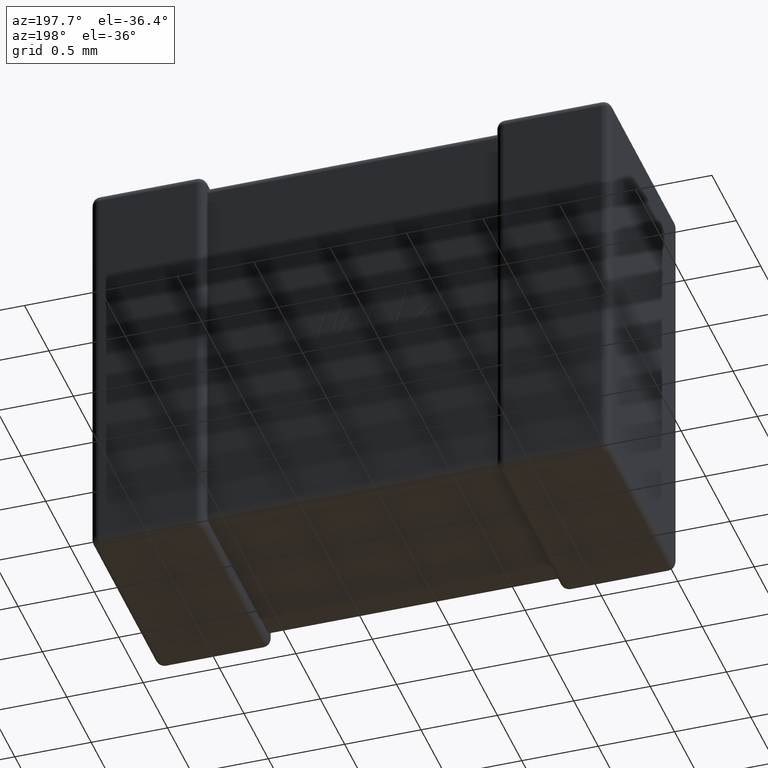
[diagram: clean part render]
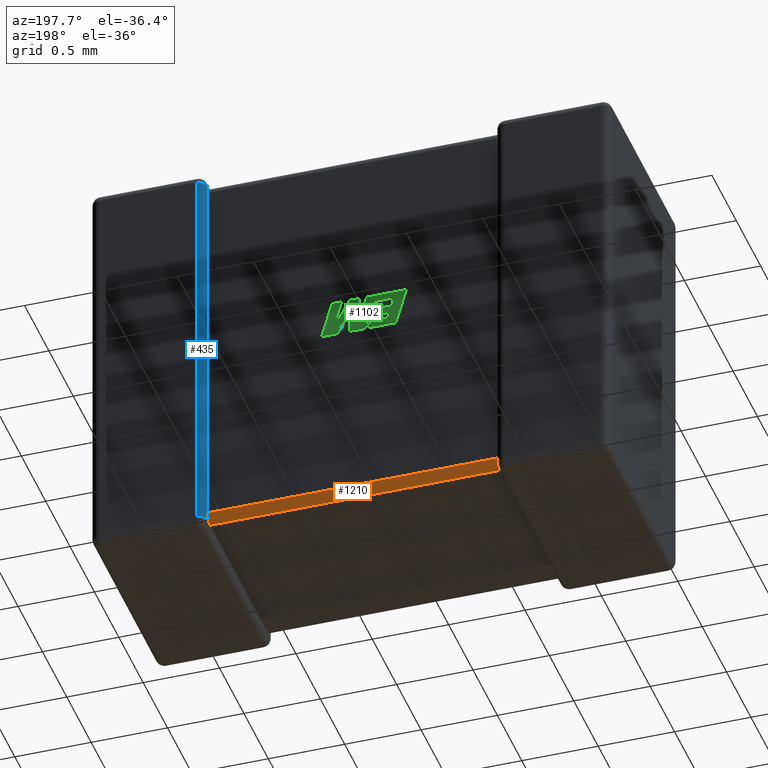
[diagram: same view with three faces highlighted in distinct colors, each labeled with its STEP entity id]
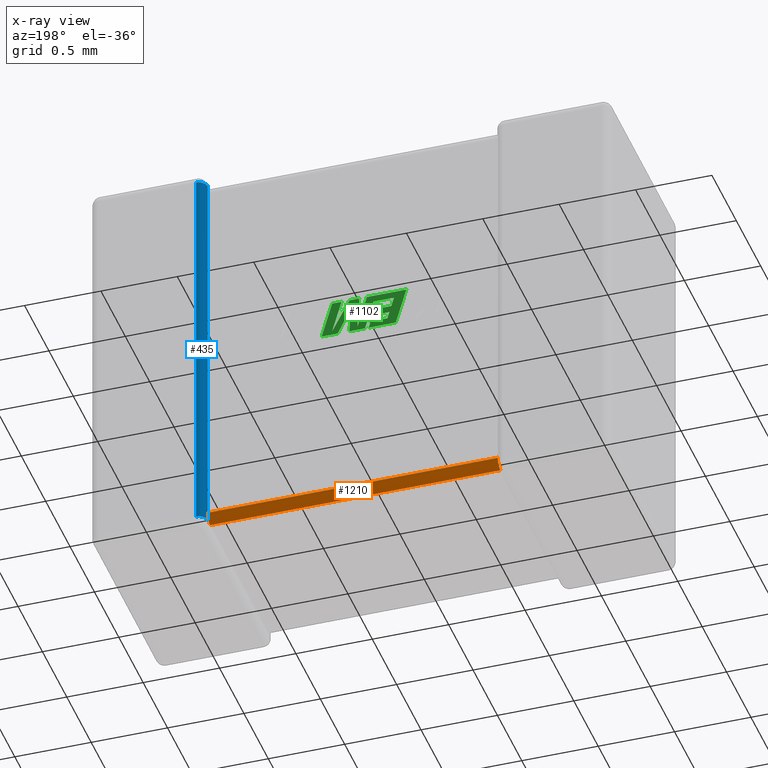
[diagram: x-ray of the same camera — body ghosted, the three highlighted faces saturated]
A machine part, auxiliary view with three faces highlighted in distinct colors.
The next image is the same camera in x-ray (body ghosted, the three faces saturated) — at least one of them is partly hidden behind the body in this view.
Their STEP definitions:

[orange] entity #1210 — the highlighted cylindrical surface (edge-blend (fillet) strip) has radius 0.0562 mm, axis along (1, 0, 0).
#19 = CARTESIAN_POINT ( 'NONE',  ( 0.7500000000000000000, 1.343840000000000100, -2.587679999999999800 ) ) ;
#94 = CARTESIAN_POINT ( 'NONE',  ( 0.7499138441189208100, 1.340730401034381700, -2.606108254124883700 ) ) ;
#97 = CARTESIAN_POINT ( 'NONE',  ( 0.7499999999999998900, 1.287680000000000200, -2.643839999999999500 ) ) ;
#115 = VERTEX_POINT ( 'NONE', #2381 ) ;
#158 = DIRECTION ( 'NONE',  ( 0.0000000000000000000, 0.0000000000000000000, -1.000000000000000000 ) ) ;
#229 = B_SPLINE_CURVE_WITH_KNOTS ( 'NONE', 3,
 ( #1987, #2759, #4188, #2707, #3769, #4572, #2747, #2352, #603, #3784 ),
 .UNSPECIFIED., .F., .F.,
 ( 4, 3, 3, 4 ),
 ( 0.0000000000000000000, 1.767674206071924600E-005, 3.526024962133304900E-005, 4.395293013428572300E-005 ),
 .UNSPECIFIED. ) ;
#288 = CARTESIAN_POINT ( 'NONE',  ( 2.649999999999910600, 1.343840000000005300, -2.590610739114433500 ) ) ;
#399 = CARTESIAN_POINT ( 'NONE',  ( 2.649972813233540100, 1.300224509987265400, -2.642774252354252800 ) ) ;
#450 = CARTESIAN_POINT ( 'NONE',  ( 0.7480079224255488100, 1.328928069657414400, -2.625854164005720500 ) ) ;
#603 = CARTESIAN_POINT ( 'NONE',  ( 0.7500000000000895900, 1.290610739114433000, -2.643840000000004900 ) ) ;
#672 = CARTESIAN_POINT ( 'NONE',  ( 2.649998611273803700, 1.343609178140380300, -2.593550420161329300 ) ) ;
#682 = B_SPLINE_CURVE_WITH_KNOTS ( 'NONE', 3,
 ( #3528, #2135, #3870, #1756, #3176, #4245, #2464, #672, #288, #3896 ),
 .UNSPECIFIED., .F., .F.,
 ( 4, 3, 3, 4 ),
 ( 0.0000000000000000000, 1.767674206071863700E-005, 3.526024962133245200E-005, 4.395293013428681400E-005 ),
 .UNSPECIFIED. ) ;
#732 = CARTESIAN_POINT ( 'NONE',  ( 2.652462887950031200, 1.327391116831436500, -2.627391116831436800 ) ) ;
#820 = CARTESIAN_POINT ( 'NONE',  ( 0.7500000000000000000, 1.343840000000000100, -2.587679999999999800 ) ) ;
#1001 = ORIENTED_EDGE ( 'NONE', *, *, #3479, .F. ) ;
#1146 = CARTESIAN_POINT ( 'NONE',  ( 2.650000000000000400, 1.287680000000000200, -2.643839999999999500 ) ) ;
#1162 = FACE_OUTER_BOUND ( 'NONE', #4567, .T. ) ;
#1210 = ADVANCED_FACE ( 'NONE', ( #1162 ), #2390, .T. ) ;
#1436 = CARTESIAN_POINT ( 'NONE',  ( 2.650199620063764100, 1.311998307288375400, -2.638684358131980500 ) ) ;
#1470 = ORIENTED_EDGE ( 'NONE', *, *, #2924, .F. ) ;
#1487 = CARTESIAN_POINT ( 'NONE',  ( 2.651615670400785600, 1.324209225527420000, -2.630393193789354100 ) ) ;
#1512 = ORIENTED_EDGE ( 'NONE', *, *, #4576, .F. ) ;
#1565 = CARTESIAN_POINT ( 'NONE',  ( 0.7500271867664603000, 1.342774252354253400, -2.600224509987264700 ) ) ;
#1569 = VERTEX_POINT ( 'NONE', #19 ) ;
#1623 = VERTEX_POINT ( 'NONE', #3754 ) ;
#1756 = CARTESIAN_POINT ( 'NONE',  ( 2.650335707210733600, 1.337708610713856500, -2.613196342019212400 ) ) ;
#1900 = CARTESIAN_POINT ( 'NONE',  ( 0.7486851103619593900, 1.331758631311622800, -2.622479710655320600 ) ) ;
#1906 = CARTESIAN_POINT ( 'NONE',  ( 0.7475371120499692000, 1.327391116831436300, -2.627391116831436800 ) ) ;
#1911 = CARTESIAN_POINT ( 'NONE',  ( 0.7499999999999998900, 1.287680000000000200, -2.587679999999999800 ) ) ;
#1975 = CARTESIAN_POINT ( 'NONE',  ( 0.7500000000000000000, 1.343840000000000100, -2.587679999999999800 ) ) ;
#1987 = CARTESIAN_POINT ( 'NONE',  ( 0.7475371120499692000, 1.327391116831436300, -2.627391116831436800 ) ) ;
#2135 = CARTESIAN_POINT ( 'NONE',  ( 2.651215518531387300, 1.331463134047087700, -2.623319099615785400 ) ) ;
#2146 = CARTESIAN_POINT ( 'NONE',  ( 2.651992077574451200, 1.325854164005720400, -2.628928069657414200 ) ) ;
#2173 = CARTESIAN_POINT ( 'NONE',  ( 2.651314889638041200, 1.322479710655321400, -2.631758631311622100 ) ) ;
#2224 = AXIS2_PLACEMENT_3D ( 'NONE', #1911, #4407, #158 ) ;
#2239 = CARTESIAN_POINT ( 'NONE',  ( 0.7483843295992150800, 1.330393193789354300, -2.624209225527419900 ) ) ;
#2352 = CARTESIAN_POINT ( 'NONE',  ( 0.7500013887261967000, 1.293550420161328400, -2.643609178140379400 ) ) ;
#2381 = CARTESIAN_POINT ( 'NONE',  ( 2.650000000000000400, 1.343840000000000100, -2.587679999999999800 ) ) ;
#2390 = CYLINDRICAL_SURFACE ( 'NONE', #2224, 0.05615999999999997400 ) ;
#2464 = CARTESIAN_POINT ( 'NONE',  ( 2.650004217338727500, 1.343151760434243100, -2.596445237836246400 ) ) ;
#2525 = CARTESIAN_POINT ( 'NONE',  ( 2.650000000000000400, 1.287680000000000200, -2.643839999999999500 ) ) ;
#2535 = CARTESIAN_POINT ( 'NONE',  ( 2.650471462269902800, 1.317629931821657300, -2.635587491127179000 ) ) ;
#2596 = CARTESIAN_POINT ( 'NONE',  ( 0.7500000000000000000, 1.343840000000000100, -2.593909656479330000 ) ) ;
#2707 = CARTESIAN_POINT ( 'NONE',  ( 0.7496642927892666100, 1.313196342019211200, -2.637708610713857200 ) ) ;
#2747 = CARTESIAN_POINT ( 'NONE',  ( 0.7499957826612729800, 1.296445237836244500, -2.643151760434242700 ) ) ;
#2759 = CARTESIAN_POINT ( 'NONE',  ( 0.7487844814686130900, 1.323319099615784900, -2.631463134047087800 ) ) ;
#2827 = EDGE_CURVE ( 'NONE', #2961, #1623, #3543, .T. ) ;
#2870 = ORIENTED_EDGE ( 'NONE', *, *, #3283, .F. ) ;
#2924 = EDGE_CURVE ( 'NONE', #1569, #3240, #4006, .T. ) ;
#2961 = VERTEX_POINT ( 'NONE', #1146 ) ;
#3008 = DIRECTION ( 'NONE',  ( -1.000000000000000000, -0.0000000000000000000, -0.0000000000000000000 ) ) ;
#3038 = EDGE_CURVE ( 'NONE', #115, #1569, #4620, .T. ) ;
#3176 = CARTESIAN_POINT ( 'NONE',  ( 2.650043034259426600, 1.340373302150460700, -2.607971815303978600 ) ) ;
#3240 = VERTEX_POINT ( 'NONE', #1906 ) ;
#3283 = EDGE_CURVE ( 'NONE', #3240, #3346, #229, .T. ) ;
#3314 = CARTESIAN_POINT ( 'NONE',  ( 0.7495285377300979800, 1.335587491127179400, -2.617629931821656700 ) ) ;
#3346 = VERTEX_POINT ( 'NONE', #4138 ) ;
#3474 = ORIENTED_EDGE ( 'NONE', *, *, #3038, .F. ) ;
#3479 = EDGE_CURVE ( 'NONE', #1623, #115, #682, .T. ) ;
#3528 = CARTESIAN_POINT ( 'NONE',  ( 2.652462887950031200, 1.327391116831436500, -2.627391116831436800 ) ) ;
#3543 = B_SPLINE_CURVE_WITH_KNOTS ( 'NONE', 3,
 ( #2525, #4333, #399, #3630, #1436, #2535, #2173, #1487, #2146, #732 ),
 .UNSPECIFIED., .F., .F.,
 ( 4, 3, 3, 4 ),
 ( 0.0000000000000000000, 1.868896943800148100E-005, 3.741653298663762900E-005, 4.400252284133044800E-005 ),
 .UNSPECIFIED. ) ;
#3630 = CARTESIAN_POINT ( 'NONE',  ( 2.650086155881079500, 1.306108254124884300, -2.640730401034380800 ) ) ;
#3645 = VECTOR ( 'NONE', #3008, 1000.000000000000000 ) ;
#3661 = CARTESIAN_POINT ( 'NONE',  ( 0.7498003799362367200, 1.338684358131981400, -2.611998307288375000 ) ) ;
#3754 = CARTESIAN_POINT ( 'NONE',  ( 2.652462887950031200, 1.327391116831436500, -2.627391116831436800 ) ) ;
#3769 = CARTESIAN_POINT ( 'NONE',  ( 0.7499569657405738000, 1.307971815303977200, -2.640373302150461000 ) ) ;
#3784 = CARTESIAN_POINT ( 'NONE',  ( 0.7499999999999998900, 1.287680000000000200, -2.643839999999999500 ) ) ;
#3870 = CARTESIAN_POINT ( 'NONE',  ( 2.650629382803493700, 1.335034790554967100, -2.618438766961910200 ) ) ;
#3896 = CARTESIAN_POINT ( 'NONE',  ( 2.650000000000000400, 1.343840000000000100, -2.587679999999999800 ) ) ;
#4006 = B_SPLINE_CURVE_WITH_KNOTS ( 'NONE', 3,
 ( #820, #2596, #1565, #94, #3661, #3314, #1900, #2239, #450, #4433 ),
 .UNSPECIFIED., .F., .F.,
 ( 4, 3, 3, 4 ),
 ( 0.0000000000000000000, 1.868896943800123000E-005, 3.741653298663737100E-005, 4.400252284133149200E-005 ),
 .UNSPECIFIED. ) ;
#4023 = VECTOR ( 'NONE', #4473, 1000.000000000000000 ) ;
#4138 = CARTESIAN_POINT ( 'NONE',  ( 0.7499999999999998900, 1.287680000000000200, -2.643839999999999500 ) ) ;
#4188 = CARTESIAN_POINT ( 'NONE',  ( 0.7493706171965067700, 1.318438766961909300, -2.635034790554967800 ) ) ;
#4245 = CARTESIAN_POINT ( 'NONE',  ( 2.650015449844887300, 1.342235262450030700, -2.602245394953314000 ) ) ;
#4271 = LINE ( 'NONE', #97, #4023 ) ;
#4292 = ORIENTED_EDGE ( 'NONE', *, *, #2827, .F. ) ;
#4333 = CARTESIAN_POINT ( 'NONE',  ( 2.650000000000000400, 1.293909656479330200, -2.643839999999999500 ) ) ;
#4407 = DIRECTION ( 'NONE',  ( 1.000000000000000000, 0.0000000000000000000, 0.0000000000000000000 ) ) ;
#4433 = CARTESIAN_POINT ( 'NONE',  ( 0.7475371120499692000, 1.327391116831436300, -2.627391116831436800 ) ) ;
#4473 = DIRECTION ( 'NONE',  ( 1.000000000000000000, 0.0000000000000000000, 0.0000000000000000000 ) ) ;
#4567 = EDGE_LOOP ( 'NONE', ( #1470, #3474, #1001, #4292, #1512, #2870 ) ) ;
#4572 = CARTESIAN_POINT ( 'NONE',  ( 0.7499845501551127800, 1.302245394953312400, -2.642235262450030500 ) ) ;
#4576 = EDGE_CURVE ( 'NONE', #3346, #2961, #4271, .T. ) ;
#4620 = LINE ( 'NONE', #1975, #3645 ) ;

[blue] entity #435 — the highlighted cylindrical surface (edge-blend (fillet) strip) has radius 0.0562 mm, axis along (-0, 0, 1).
#6 = EDGE_CURVE ( 'NONE', #4137, #151, #2266, .T. ) ;
#54 = CARTESIAN_POINT ( 'NONE',  ( 2.652462887950031200, 1.327391116831437000, -0.07260888316856310700 ) ) ;
#115 = VERTEX_POINT ( 'NONE', #2381 ) ;
#151 = VERTEX_POINT ( 'NONE', #2761 ) ;
#240 = CARTESIAN_POINT ( 'NONE',  ( 2.650000000000000400, 1.343840000000000100, -0.05615999999999954400 ) ) ;
#288 = CARTESIAN_POINT ( 'NONE',  ( 2.649999999999910600, 1.343840000000005300, -2.590610739114433500 ) ) ;
#419 = CARTESIAN_POINT ( 'NONE',  ( 2.650827041115605600, 1.332731312263832500, -0.06726868773616766200 ) ) ;
#435 = ADVANCED_FACE ( 'NONE', ( #1836 ), #475, .T. ) ;
#475 = CYLINDRICAL_SURFACE ( 'NONE', #1643, 0.05615999999999997400 ) ;
#500 = LINE ( 'NONE', #2046, #685 ) ;
#586 = DIRECTION ( 'NONE',  ( 4.826398559853565100E-016, -0.0000000000000000000, 1.000000000000000000 ) ) ;
#587 = B_SPLINE_CURVE_WITH_KNOTS ( 'NONE', 3,
 ( #4187, #2376, #599, #3096, #3463, #984, #4417, #4673, #3487, #1596 ),
 .UNSPECIFIED., .F., .F.,
 ( 4, 3, 3, 4 ),
 ( 8.677851511149104100E-019, 1.868896943800151500E-005, 3.741653298663774400E-005, 4.400252284133059000E-005 ),
 .UNSPECIFIED. ) ;
#599 = CARTESIAN_POINT ( 'NONE',  ( 2.649972813233540100, 1.342774252354253400, -0.09977549001273439100 ) ) ;
#672 = CARTESIAN_POINT ( 'NONE',  ( 2.649998611273803700, 1.343609178140380300, -2.593550420161329300 ) ) ;
#682 = B_SPLINE_CURVE_WITH_KNOTS ( 'NONE', 3,
 ( #3528, #2135, #3870, #1756, #3176, #4245, #2464, #672, #288, #3896 ),
 .UNSPECIFIED., .F., .F.,
 ( 4, 3, 3, 4 ),
 ( 0.0000000000000000000, 1.767674206071863700E-005, 3.526024962133245200E-005, 4.395293013428681400E-005 ),
 .UNSPECIFIED. ) ;
#685 = VECTOR ( 'NONE', #1338, 1000.000000000000000 ) ;
#773 = ORIENTED_EDGE ( 'NONE', *, *, #4116, .T. ) ;
#815 = CARTESIAN_POINT ( 'NONE',  ( 2.650000000000000400, 1.338254869551937600, -0.06174513044806256200 ) ) ;
#887 = CIRCLE ( 'NONE', #4005, 0.05615999999999997400 ) ;
#936 = EDGE_CURVE ( 'NONE', #2137, #1623, #2677, .T. ) ;
#984 = CARTESIAN_POINT ( 'NONE',  ( 2.650471462269902800, 1.335587491127179400, -0.08237006817834234600 ) ) ;
#1124 = CARTESIAN_POINT ( 'NONE',  ( 2.706160000000000600, 1.343839999999999900, 0.0000000000000000000 ) ) ;
#1181 = AXIS2_PLACEMENT_3D ( 'NONE', #2347, #586, #2000 ) ;
#1338 = DIRECTION ( 'NONE',  ( -0.0000000000000000000, 0.0000000000000000000, 1.000000000000000000 ) ) ;
#1438 = EDGE_CURVE ( 'NONE', #2137, #1621, #887, .T. ) ;
#1596 = CARTESIAN_POINT ( 'NONE',  ( 2.652462887950031200, 1.327391116831437000, -0.07260888316856310700 ) ) ;
#1621 = VERTEX_POINT ( 'NONE', #2878 ) ;
#1623 = VERTEX_POINT ( 'NONE', #3754 ) ;
#1643 = AXIS2_PLACEMENT_3D ( 'NONE', #1124, #3971, #3997 ) ;
#1652 = CARTESIAN_POINT ( 'NONE',  ( 2.650000000000000400, 1.343840000000000100, -2.700000000000000200 ) ) ;
#1696 = EDGE_CURVE ( 'NONE', #3921, #4137, #1985, .T. ) ;
#1756 = CARTESIAN_POINT ( 'NONE',  ( 2.650335707210733600, 1.337708610713856500, -2.613196342019212400 ) ) ;
#1769 = ORIENTED_EDGE ( 'NONE', *, *, #936, .T. ) ;
#1836 = FACE_OUTER_BOUND ( 'NONE', #2894, .T. ) ;
#1985 = CIRCLE ( 'NONE', #1181, 0.05615999999999997400 ) ;
#2000 = DIRECTION ( 'NONE',  ( 1.000000000000000000, 0.0000000000000000000, -4.826398559853565100E-016 ) ) ;
#2020 = CARTESIAN_POINT ( 'NONE',  ( 2.706160000000000600, 1.399999999999999900, -0.05616000000000000200 ) ) ;
#2046 = CARTESIAN_POINT ( 'NONE',  ( 2.706160000000000600, 1.399999999999999900, 0.0000000000000000000 ) ) ;
#2089 = CARTESIAN_POINT ( 'NONE',  ( 2.650000000000000400, 1.338254869551937000, -2.638254869551937400 ) ) ;
#2135 = CARTESIAN_POINT ( 'NONE',  ( 2.651215518531387300, 1.331463134047087700, -2.623319099615785400 ) ) ;
#2137 = VERTEX_POINT ( 'NONE', #3322 ) ;
#2233 = VECTOR ( 'NONE', #2420, 1000.000000000000000 ) ;
#2234 = ORIENTED_EDGE ( 'NONE', *, *, #3140, .F. ) ;
#2266 =( BOUNDED_CURVE ( )  B_SPLINE_CURVE ( 3, ( #2969, #815, #419, #54 ),
 .UNSPECIFIED., .F., .F. ) 
 B_SPLINE_CURVE_WITH_KNOTS ( ( 4, 4 ),
 ( 1.570796326794890800, 1.868047688116096800 ),
 .UNSPECIFIED. ) 
 CURVE ( )  GEOMETRIC_REPRESENTATION_ITEM ( )  RATIONAL_B_SPLINE_CURVE ( ( 1.000000000000000000, 0.9926503465430338600, 0.9926503465430338600, 1.000000000000000000 ) ) 
 REPRESENTATION_ITEM ( '' )  );
#2347 = CARTESIAN_POINT ( 'NONE',  ( 2.706160000000000600, 1.343839999999999900, -0.05616000000000000200 ) ) ;
#2376 = CARTESIAN_POINT ( 'NONE',  ( 2.650000000000000400, 1.343840000000000100, -0.1060903435206694600 ) ) ;
#2381 = CARTESIAN_POINT ( 'NONE',  ( 2.650000000000000400, 1.343840000000000100, -2.587679999999999800 ) ) ;
#2420 = DIRECTION ( 'NONE',  ( -0.0000000000000000000, -0.0000000000000000000, 1.000000000000000000 ) ) ;
#2462 = VERTEX_POINT ( 'NONE', #2640 ) ;
#2464 = CARTESIAN_POINT ( 'NONE',  ( 2.650004217338727500, 1.343151760434243100, -2.596445237836246400 ) ) ;
#2640 = CARTESIAN_POINT ( 'NONE',  ( 2.650000000000000400, 1.343840000000000100, -0.1123200000000003900 ) ) ;
#2677 =( BOUNDED_CURVE ( )  B_SPLINE_CURVE ( 3, ( #4626, #2089, #3880, #4646 ),
 .UNSPECIFIED., .F., .F. ) 
 B_SPLINE_CURVE_WITH_KNOTS ( ( 4, 4 ),
 ( 1.570796326794898600, 1.868047688116103900 ),
 .UNSPECIFIED. ) 
 CURVE ( )  GEOMETRIC_REPRESENTATION_ITEM ( )  RATIONAL_B_SPLINE_CURVE ( ( 1.000000000000000000, 0.9926503465430338600, 0.9926503465430338600, 1.000000000000000000 ) ) 
 REPRESENTATION_ITEM ( '' )  );
#2761 = CARTESIAN_POINT ( 'NONE',  ( 2.652462887950031200, 1.327391116831437000, -0.07260888316856310700 ) ) ;
#2878 = CARTESIAN_POINT ( 'NONE',  ( 2.706160000000000600, 1.399999999999999900, -2.643840000000000000 ) ) ;
#2894 = EDGE_LOOP ( 'NONE', ( #4150, #1769, #3110, #773, #3847, #4167, #3696, #2234 ) ) ;
#2969 = CARTESIAN_POINT ( 'NONE',  ( 2.650000000000000400, 1.343840000000000100, -0.05615999999999954400 ) ) ;
#3096 = CARTESIAN_POINT ( 'NONE',  ( 2.650086155881079500, 1.340730401034381500, -0.09389174587511532600 ) ) ;
#3110 = ORIENTED_EDGE ( 'NONE', *, *, #3479, .T. ) ;
#3140 = EDGE_CURVE ( 'NONE', #1621, #3921, #500, .T. ) ;
#3176 = CARTESIAN_POINT ( 'NONE',  ( 2.650043034259426600, 1.340373302150460700, -2.607971815303978600 ) ) ;
#3322 = CARTESIAN_POINT ( 'NONE',  ( 2.650000000000000400, 1.343840000000000100, -2.643839999999999500 ) ) ;
#3463 = CARTESIAN_POINT ( 'NONE',  ( 2.650199620063764100, 1.338684358131980900, -0.08800169271162421000 ) ) ;
#3479 = EDGE_CURVE ( 'NONE', #1623, #115, #682, .T. ) ;
#3487 = CARTESIAN_POINT ( 'NONE',  ( 2.651992077574451700, 1.328928069657414600, -0.07414583599427915200 ) ) ;
#3528 = CARTESIAN_POINT ( 'NONE',  ( 2.652462887950031200, 1.327391116831436500, -2.627391116831436800 ) ) ;
#3696 = ORIENTED_EDGE ( 'NONE', *, *, #1696, .F. ) ;
#3754 = CARTESIAN_POINT ( 'NONE',  ( 2.652462887950031200, 1.327391116831436500, -2.627391116831436800 ) ) ;
#3824 = CARTESIAN_POINT ( 'NONE',  ( 2.706160000000000600, 1.343839999999999900, -2.643840000000000000 ) ) ;
#3847 = ORIENTED_EDGE ( 'NONE', *, *, #4158, .T. ) ;
#3870 = CARTESIAN_POINT ( 'NONE',  ( 2.650629382803493700, 1.335034790554967100, -2.618438766961910200 ) ) ;
#3880 = CARTESIAN_POINT ( 'NONE',  ( 2.650827041115605600, 1.332731312263832000, -2.632731312263832300 ) ) ;
#3896 = CARTESIAN_POINT ( 'NONE',  ( 2.650000000000000400, 1.343840000000000100, -2.587679999999999800 ) ) ;
#3921 = VERTEX_POINT ( 'NONE', #2020 ) ;
#3971 = DIRECTION ( 'NONE',  ( -0.0000000000000000000, 0.0000000000000000000, 1.000000000000000000 ) ) ;
#3997 = DIRECTION ( 'NONE',  ( 1.000000000000000000, 0.0000000000000000000, 0.0000000000000000000 ) ) ;
#4005 = AXIS2_PLACEMENT_3D ( 'NONE', #3824, #4239, #4631 ) ;
#4116 = EDGE_CURVE ( 'NONE', #115, #2462, #4389, .T. ) ;
#4137 = VERTEX_POINT ( 'NONE', #240 ) ;
#4150 = ORIENTED_EDGE ( 'NONE', *, *, #1438, .F. ) ;
#4158 = EDGE_CURVE ( 'NONE', #2462, #151, #587, .T. ) ;
#4167 = ORIENTED_EDGE ( 'NONE', *, *, #6, .F. ) ;
#4187 = CARTESIAN_POINT ( 'NONE',  ( 2.650000000000000400, 1.343840000000000100, -0.1123200000000003900 ) ) ;
#4239 = DIRECTION ( 'NONE',  ( 0.0000000000000000000, 0.0000000000000000000, -1.000000000000000000 ) ) ;
#4245 = CARTESIAN_POINT ( 'NONE',  ( 2.650015449844887300, 1.342235262450030700, -2.602245394953314000 ) ) ;
#4389 = LINE ( 'NONE', #1652, #2233 ) ;
#4417 = CARTESIAN_POINT ( 'NONE',  ( 2.651314889638041200, 1.331758631311622500, -0.07752028934467822300 ) ) ;
#4626 = CARTESIAN_POINT ( 'NONE',  ( 2.650000000000000400, 1.343840000000000100, -2.643839999999999500 ) ) ;
#4631 = DIRECTION ( 'NONE',  ( -1.000000000000000000, 0.0000000000000000000, 0.0000000000000000000 ) ) ;
#4646 = CARTESIAN_POINT ( 'NONE',  ( 2.652462887950031200, 1.327391116831436500, -2.627391116831436800 ) ) ;
#4673 = CARTESIAN_POINT ( 'NONE',  ( 2.651615670400785600, 1.330393193789354300, -0.07579077447257959200 ) ) ;

[green] entity #1102 — the highlighted planar face has unit normal (0, -1, 0).
#11 = DIRECTION ( 'NONE',  ( 0.0000000000000000000, 0.0000000000000000000, -1.000000000000000000 ) ) ;
#25 = CARTESIAN_POINT ( 'NONE',  ( 1.470714486032121300, 1.348840000000000300, -1.347979072396408500 ) ) ;
#36 = VERTEX_POINT ( 'NONE', #2926 ) ;
#133 = ORIENTED_EDGE ( 'NONE', *, *, #4529, .T. ) ;
#142 = DIRECTION ( 'NONE',  ( -1.000000000000000000, 0.0000000000000000000, 0.0000000000000000000 ) ) ;
#161 = EDGE_CURVE ( 'NONE', #4270, #1843, #1169, .T. ) ;
#206 = ORIENTED_EDGE ( 'NONE', *, *, #3949, .T. ) ;
#220 = EDGE_CURVE ( 'NONE', #479, #781, #1283, .T. ) ;
#233 = ORIENTED_EDGE ( 'NONE', *, *, #346, .T. ) ;
#234 = CARTESIAN_POINT ( 'NONE',  ( 1.617344561569602300, 1.348840000000000300, -1.393777468605939400 ) ) ;
#332 = CARTESIAN_POINT ( 'NONE',  ( 1.795811030974152000, 1.348840000000000300, -1.393777468605939400 ) ) ;
#346 = EDGE_CURVE ( 'NONE', #2686, #2403, #2669, .T. ) ;
#347 = DIRECTION ( 'NONE',  ( 0.2759782365590801600, 0.0000000000000000000, -0.9611638845408936300 ) ) ;
#378 = VERTEX_POINT ( 'NONE', #740 ) ;
#479 = VERTEX_POINT ( 'NONE', #814 ) ;
#481 = LINE ( 'NONE', #777, #3461 ) ;
#482 = VECTOR ( 'NONE', #3615, 1000.000000000000000 ) ;
#518 = CARTESIAN_POINT ( 'NONE',  ( 1.427963170861977500, 1.348840000000000300, -1.198945716855293900 ) ) ;
#539 = ORIENTED_EDGE ( 'NONE', *, *, #1851, .T. ) ;
#625 = LINE ( 'NONE', #3825, #3131 ) ;
#626 = ORIENTED_EDGE ( 'NONE', *, *, #1633, .T. ) ;
#661 = CARTESIAN_POINT ( 'NONE',  ( 1.346355536600579700, 1.348840000000000300, -1.153169999999999600 ) ) ;
#692 = CARTESIAN_POINT ( 'NONE',  ( 1.719810770062254900, 1.348840000000000300, -1.393777468605939400 ) ) ;
#713 = CARTESIAN_POINT ( 'NONE',  ( 1.832830620914688500, 1.348840000000000300, -1.368408049820770500 ) ) ;
#740 = CARTESIAN_POINT ( 'NONE',  ( 1.346355536600579700, 1.348840000000000300, -1.153169999999999600 ) ) ;
#769 = DIRECTION ( 'NONE',  ( 0.2793947940878429000, 0.0000000000000000000, -0.9601763114327556100 ) ) ;
#772 = CARTESIAN_POINT ( 'NONE',  ( 1.710557694836944100, 1.348840000000000300, -1.221884401607177500 ) ) ;
#774 = CARTESIAN_POINT ( 'NONE',  ( 1.832163408931786000, 1.348840000000000300, -1.153170000000000000 ) ) ;
#777 = CARTESIAN_POINT ( 'NONE',  ( 1.617344561569602300, 1.348840000000000300, -1.393777468605939400 ) ) ;
#779 = CARTESIAN_POINT ( 'NONE',  ( 1.655061791398066800, 1.348840000000000300, -1.153170000000000000 ) ) ;
#781 = VERTEX_POINT ( 'NONE', #4523 ) ;
#814 = CARTESIAN_POINT ( 'NONE',  ( 1.427963170861977500, 1.348840000000000300, -1.198945716855293900 ) ) ;
#845 = ORIENTED_EDGE ( 'NONE', *, *, #3565, .T. ) ;
#933 = DIRECTION ( 'NONE',  ( 0.05375259206908434400, 0.0000000000000000000, -0.9985542843760946100 ) ) ;
#963 = EDGE_CURVE ( 'NONE', #3354, #3639, #3286, .T. ) ;
#999 = VECTOR ( 'NONE', #1715, 1000.000000000000000 ) ;
#1022 = EDGE_CURVE ( 'NONE', #3639, #2290, #4650, .T. ) ;
#1027 = EDGE_CURVE ( 'NONE', #2244, #2773, #481, .T. ) ;
#1066 = ORIENTED_EDGE ( 'NONE', *, *, #2615, .T. ) ;
#1074 = ORIENTED_EDGE ( 'NONE', *, *, #1027, .T. ) ;
#1099 = LINE ( 'NONE', #3908, #2983 ) ;
#1102 = ADVANCED_FACE ( 'NONE', ( #3910 ), #4001, .F. ) ;
#1109 = CARTESIAN_POINT ( 'NONE',  ( 1.457692146891389700, 1.348840000000000300, -1.303226121278632900 ) ) ;
#1135 = VECTOR ( 'NONE', #1705, 1000.000000000000000 ) ;
#1143 = DIRECTION ( 'NONE',  ( 1.000000000000000000, 0.0000000000000000000, 0.0000000000000000000 ) ) ;
#1169 = LINE ( 'NONE', #2264, #1219 ) ;
#1219 = VECTOR ( 'NONE', #3819, 1000.000000000000000 ) ;
#1260 = CARTESIAN_POINT ( 'NONE',  ( 1.415592680271959200, 1.348840000000000300, -1.393777468605939400 ) ) ;
#1283 = LINE ( 'NONE', #518, #2841 ) ;
#1300 = CARTESIAN_POINT ( 'NONE',  ( 1.832163408931786000, 1.348840000000000300, -1.153170000000000000 ) ) ;
#1403 = VECTOR ( 'NONE', #3258, 1000.000000000000200 ) ;
#1412 = EDGE_CURVE ( 'NONE', #378, #3354, #3395, .T. ) ;
#1498 = CARTESIAN_POINT ( 'NONE',  ( 1.832830620914688500, 1.348840000000000300, -1.368408049820770500 ) ) ;
#1568 = ORIENTED_EDGE ( 'NONE', *, *, #2240, .T. ) ;
#1580 = EDGE_CURVE ( 'NONE', #1702, #4270, #2936, .T. ) ;
#1616 = VECTOR ( 'NONE', #347, 1000.000000000000100 ) ;
#1633 = EDGE_CURVE ( 'NONE', #4439, #1702, #3670, .T. ) ;
#1690 = CARTESIAN_POINT ( 'NONE',  ( 1.580337707463669100, 1.348840000000000300, -1.347979072396408500 ) ) ;
#1702 = VERTEX_POINT ( 'NONE', #3440 ) ;
#1705 = DIRECTION ( 'NONE',  ( 0.2732148821746424000, 0.0000000000000000000, -0.9619530280415443700 ) ) ;
#1715 = DIRECTION ( 'NONE',  ( 1.000000000000000000, 0.0000000000000000000, 0.0000000000000000000 ) ) ;
#1814 = CARTESIAN_POINT ( 'NONE',  ( 1.795811030974152000, 1.348840000000000300, -1.393777468605939400 ) ) ;
#1843 = VERTEX_POINT ( 'NONE', #4644 ) ;
#1851 = EDGE_CURVE ( 'NONE', #3015, #2780, #1099, .T. ) ;
#1904 = LINE ( 'NONE', #1690, #1135 ) ;
#1957 = ORIENTED_EDGE ( 'NONE', *, *, #4278, .T. ) ;
#1967 = EDGE_CURVE ( 'NONE', #781, #3925, #2651, .T. ) ;
#1971 = CARTESIAN_POINT ( 'NONE',  ( 1.605563734006848000, 1.348840000000000300, -1.153170000000000000 ) ) ;
#1998 = ORIENTED_EDGE ( 'NONE', *, *, #4250, .T. ) ;
#2074 = VECTOR ( 'NONE', #4554, 1000.000000000000000 ) ;
#2078 = VERTEX_POINT ( 'NONE', #772 ) ;
#2104 = AXIS2_PLACEMENT_3D ( 'NONE', #4353, #3217, #11 ) ;
#2112 = CARTESIAN_POINT ( 'NONE',  ( 1.667068680722454400, 1.348840000000000300, -1.367376504979233200 ) ) ;
#2174 = CARTESIAN_POINT ( 'NONE',  ( 1.548258857652406300, 1.348840000000000300, -1.258746054009087600 ) ) ;
#2228 = VERTEX_POINT ( 'NONE', #3433 ) ;
#2240 = EDGE_CURVE ( 'NONE', #2078, #4145, #2907, .T. ) ;
#2244 = VERTEX_POINT ( 'NONE', #234 ) ;
#2264 = CARTESIAN_POINT ( 'NONE',  ( 1.470714486032121300, 1.348840000000000300, -1.347979072396408500 ) ) ;
#2284 = LINE ( 'NONE', #1260, #2074 ) ;
#2290 = VERTEX_POINT ( 'NONE', #4135 ) ;
#2321 = CARTESIAN_POINT ( 'NONE',  ( 1.719205590769774700, 1.348840000000000300, -1.153170000000000000 ) ) ;
#2393 = EDGE_LOOP ( 'NONE', ( #206, #2457, #1568, #3066, #1074, #3021, #4345, #3191, #2401, #626, #3788, #3380, #1066, #233, #4071, #4581, #3244, #4284, #845, #539, #1998, #133, #1957 ) ) ;
#2395 = VECTOR ( 'NONE', #4098, 1000.000000000000000 ) ;
#2398 = LINE ( 'NONE', #692, #4652 ) ;
#2401 = ORIENTED_EDGE ( 'NONE', *, *, #3621, .T. ) ;
#2403 = VERTEX_POINT ( 'NONE', #4508 ) ;
#2431 = CARTESIAN_POINT ( 'NONE',  ( 1.593345414762694200, 1.348840000000000300, -1.393777468605939400 ) ) ;
#2450 = DIRECTION ( 'NONE',  ( -1.000000000000000000, 0.0000000000000000000, 0.0000000000000000000 ) ) ;
#2457 = ORIENTED_EDGE ( 'NONE', *, *, #2756, .T. ) ;
#2482 = DIRECTION ( 'NONE',  ( -0.05596501978068185000, 0.0000000000000000000, 0.9984327301130245800 ) ) ;
#2509 = VECTOR ( 'NONE', #3323, 1000.000000000000100 ) ;
#2511 = VECTOR ( 'NONE', #2482, 1000.000000000000100 ) ;
#2551 = VERTEX_POINT ( 'NONE', #1300 ) ;
#2615 = EDGE_CURVE ( 'NONE', #1843, #2686, #1904, .T. ) ;
#2651 = LINE ( 'NONE', #4352, #4010 ) ;
#2669 = LINE ( 'NONE', #4618, #4604 ) ;
#2686 = VERTEX_POINT ( 'NONE', #2431 ) ;
#2714 = CARTESIAN_POINT ( 'NONE',  ( 1.901339830266763900, 1.348840000000000300, -1.393777468605939400 ) ) ;
#2721 = CARTESIAN_POINT ( 'NONE',  ( 1.719810770062254900, 1.348840000000000300, -1.393777468605939400 ) ) ;
#2756 = EDGE_CURVE ( 'NONE', #4562, #2078, #3871, .T. ) ;
#2773 = VERTEX_POINT ( 'NONE', #4316 ) ;
#2780 = VERTEX_POINT ( 'NONE', #713 ) ;
#2841 = VECTOR ( 'NONE', #3496, 1000.000000000000200 ) ;
#2862 = DIRECTION ( 'NONE',  ( -0.2762517575166416100, 0.0000000000000000000, 0.9610853065513833600 ) ) ;
#2907 = LINE ( 'NONE', #4178, #3530 ) ;
#2912 = DIRECTION ( 'NONE',  ( 0.2746459304917039400, 0.0000000000000000000, -0.9615454294334439000 ) ) ;
#2926 = CARTESIAN_POINT ( 'NONE',  ( 1.901339830266763900, 1.348840000000000300, -1.393777468605939400 ) ) ;
#2936 = LINE ( 'NONE', #1109, #3778 ) ;
#2983 = VECTOR ( 'NONE', #4304, 1000.000000000000000 ) ;
#2987 = VECTOR ( 'NONE', #142, 1000.000000000000000 ) ;
#3015 = VERTEX_POINT ( 'NONE', #2321 ) ;
#3021 = ORIENTED_EDGE ( 'NONE', *, *, #3154, .T. ) ;
#3059 = VECTOR ( 'NONE', #2912, 1000.000000000000100 ) ;
#3064 = LINE ( 'NONE', #779, #482 ) ;
#3066 = ORIENTED_EDGE ( 'NONE', *, *, #3557, .T. ) ;
#3131 = VECTOR ( 'NONE', #3450, 1000.000000000000000 ) ;
#3154 = EDGE_CURVE ( 'NONE', #2773, #479, #625, .T. ) ;
#3160 = CARTESIAN_POINT ( 'NONE',  ( 1.771021331891165800, 1.348840000000000300, -1.153170000000000000 ) ) ;
#3175 = LINE ( 'NONE', #2174, #3059 ) ;
#3191 = ORIENTED_EDGE ( 'NONE', *, *, #1967, .T. ) ;
#3217 = DIRECTION ( 'NONE',  ( 0.0000000000000000000, -1.000000000000000000, 0.0000000000000000000 ) ) ;
#3244 = ORIENTED_EDGE ( 'NONE', *, *, #963, .T. ) ;
#3258 = DIRECTION ( 'NONE',  ( 0.2763139702539146300, 0.0000000000000000000, -0.9610674221107063900 ) ) ;
#3286 = LINE ( 'NONE', #4634, #1616 ) ;
#3305 = VECTOR ( 'NONE', #3992, 1000.000000000000000 ) ;
#3315 = EDGE_CURVE ( 'NONE', #2403, #378, #2284, .T. ) ;
#3323 = DIRECTION ( 'NONE',  ( -0.2760118818968593800, 0.0000000000000000000, 0.9611542233438680200 ) ) ;
#3354 = VERTEX_POINT ( 'NONE', #1971 ) ;
#3380 = ORIENTED_EDGE ( 'NONE', *, *, #161, .T. ) ;
#3395 = LINE ( 'NONE', #661, #999 ) ;
#3433 = CARTESIAN_POINT ( 'NONE',  ( 1.771021331891165800, 1.348840000000000300, -1.153170000000000000 ) ) ;
#3440 = CARTESIAN_POINT ( 'NONE',  ( 1.457692146891389700, 1.348840000000000300, -1.303226121278632900 ) ) ;
#3450 = DIRECTION ( 'NONE',  ( -1.000000000000000000, 0.0000000000000000000, 0.0000000000000000000 ) ) ;
#3461 = VECTOR ( 'NONE', #2862, 1000.000000000000100 ) ;
#3496 = DIRECTION ( 'NONE',  ( 0.2740217765953990600, 0.0000000000000000000, -0.9617234872620618000 ) ) ;
#3530 = VECTOR ( 'NONE', #933, 1000.000000000000200 ) ;
#3557 = EDGE_CURVE ( 'NONE', #4145, #2244, #2398, .T. ) ;
#3565 = EDGE_CURVE ( 'NONE', #2290, #3015, #3064, .T. ) ;
#3615 = DIRECTION ( 'NONE',  ( 1.000000000000000000, 0.0000000000000000000, 0.0000000000000000000 ) ) ;
#3621 = EDGE_CURVE ( 'NONE', #3925, #4439, #3175, .T. ) ;
#3639 = VERTEX_POINT ( 'NONE', #4454 ) ;
#3670 = LINE ( 'NONE', #3777, #2987 ) ;
#3693 = LINE ( 'NONE', #2714, #4612 ) ;
#3777 = CARTESIAN_POINT ( 'NONE',  ( 1.560963685827582600, 1.348840000000000300, -1.303226121278632900 ) ) ;
#3778 = VECTOR ( 'NONE', #769, 999.9999999999998900 ) ;
#3788 = ORIENTED_EDGE ( 'NONE', *, *, #1580, .T. ) ;
#3819 = DIRECTION ( 'NONE',  ( 1.000000000000000000, 0.0000000000000000000, 0.0000000000000000000 ) ) ;
#3825 = CARTESIAN_POINT ( 'NONE',  ( 1.561342650527707900, 1.348840000000000300, -1.198945716855293900 ) ) ;
#3871 = LINE ( 'NONE', #1814, #3305 ) ;
#3908 = CARTESIAN_POINT ( 'NONE',  ( 1.719205590769774700, 1.348840000000000300, -1.153170000000000000 ) ) ;
#3910 = FACE_OUTER_BOUND ( 'NONE', #2393, .T. ) ;
#3915 = DIRECTION ( 'NONE',  ( -1.000000000000000000, 0.0000000000000000000, 0.0000000000000000000 ) ) ;
#3925 = VERTEX_POINT ( 'NONE', #4182 ) ;
#3949 = EDGE_CURVE ( 'NONE', #36, #4562, #3693, .T. ) ;
#3992 = DIRECTION ( 'NONE',  ( -0.4443210308329503800, 0.0000000000000000000, 0.8958676361826809500 ) ) ;
#4001 = PLANE ( 'NONE',  #2104 ) ;
#4010 = VECTOR ( 'NONE', #1143, 1000.000000000000000 ) ;
#4071 = ORIENTED_EDGE ( 'NONE', *, *, #3315, .T. ) ;
#4098 = DIRECTION ( 'NONE',  ( 1.000000000000000000, 0.0000000000000000000, 0.0000000000000000000 ) ) ;
#4135 = CARTESIAN_POINT ( 'NONE',  ( 1.655061791398066800, 1.348840000000000300, -1.153170000000000000 ) ) ;
#4145 = VERTEX_POINT ( 'NONE', #2721 ) ;
#4178 = CARTESIAN_POINT ( 'NONE',  ( 1.710557694836944100, 1.348840000000000300, -1.221884401607177500 ) ) ;
#4182 = CARTESIAN_POINT ( 'NONE',  ( 1.548258857652406300, 1.348840000000000300, -1.258746054009087600 ) ) ;
#4250 = EDGE_CURVE ( 'NONE', #2780, #2228, #4492, .T. ) ;
#4270 = VERTEX_POINT ( 'NONE', #25 ) ;
#4278 = EDGE_CURVE ( 'NONE', #2551, #36, #4382, .T. ) ;
#4284 = ORIENTED_EDGE ( 'NONE', *, *, #1022, .T. ) ;
#4304 = DIRECTION ( 'NONE',  ( 0.4668459304955247000, 0.0000000000000000000, -0.8843386665637592600 ) ) ;
#4316 = CARTESIAN_POINT ( 'NONE',  ( 1.561342650527707900, 1.348840000000000300, -1.198945716855293900 ) ) ;
#4345 = ORIENTED_EDGE ( 'NONE', *, *, #220, .T. ) ;
#4352 = CARTESIAN_POINT ( 'NONE',  ( 1.445001950557935200, 1.348840000000000300, -1.258746054009087600 ) ) ;
#4353 = CARTESIAN_POINT ( 'NONE',  ( -0.0002255481140239681100, 1.348839999999999800, -0.3440333437732227600 ) ) ;
#4382 = LINE ( 'NONE', #774, #1403 ) ;
#4439 = VERTEX_POINT ( 'NONE', #4588 ) ;
#4454 = CARTESIAN_POINT ( 'NONE',  ( 1.667068680722454400, 1.348840000000000300, -1.367376504979233200 ) ) ;
#4486 = LINE ( 'NONE', #3160, #2395 ) ;
#4492 = LINE ( 'NONE', #1498, #2509 ) ;
#4508 = CARTESIAN_POINT ( 'NONE',  ( 1.415592680271959200, 1.348840000000000300, -1.393777468605939400 ) ) ;
#4523 = CARTESIAN_POINT ( 'NONE',  ( 1.445001950557935200, 1.348840000000000300, -1.258746054009087600 ) ) ;
#4529 = EDGE_CURVE ( 'NONE', #2228, #2551, #4486, .T. ) ;
#4554 = DIRECTION ( 'NONE',  ( -0.2765379750249969400, 0.0000000000000000000, 0.9610029908221275900 ) ) ;
#4562 = VERTEX_POINT ( 'NONE', #332 ) ;
#4565 = DIRECTION ( 'NONE',  ( -1.000000000000000000, 0.0000000000000000000, 0.0000000000000000000 ) ) ;
#4581 = ORIENTED_EDGE ( 'NONE', *, *, #1412, .T. ) ;
#4588 = CARTESIAN_POINT ( 'NONE',  ( 1.560963685827582600, 1.348840000000000300, -1.303226121278632900 ) ) ;
#4604 = VECTOR ( 'NONE', #2450, 1000.000000000000000 ) ;
#4612 = VECTOR ( 'NONE', #4565, 1000.000000000000000 ) ;
#4618 = CARTESIAN_POINT ( 'NONE',  ( 1.593345414762694200, 1.348840000000000300, -1.393777468605939400 ) ) ;
#4634 = CARTESIAN_POINT ( 'NONE',  ( 1.605563734006848000, 1.348840000000000300, -1.153170000000000000 ) ) ;
#4644 = CARTESIAN_POINT ( 'NONE',  ( 1.580337707463669100, 1.348840000000000300, -1.347979072396408500 ) ) ;
#4650 = LINE ( 'NONE', #2112, #2511 ) ;
#4652 = VECTOR ( 'NONE', #3915, 1000.000000000000000 ) ;